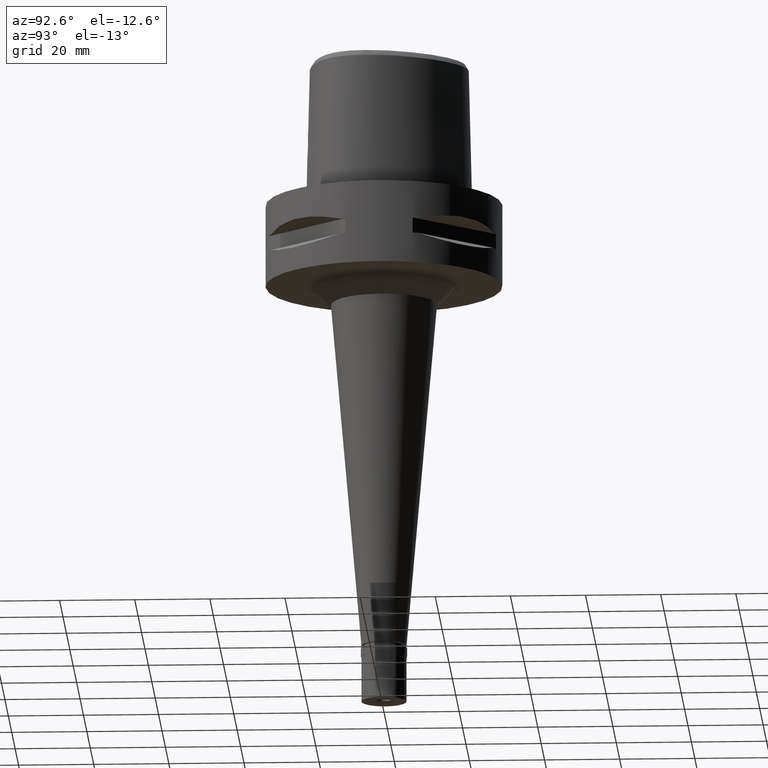
[diagram: clean part render]
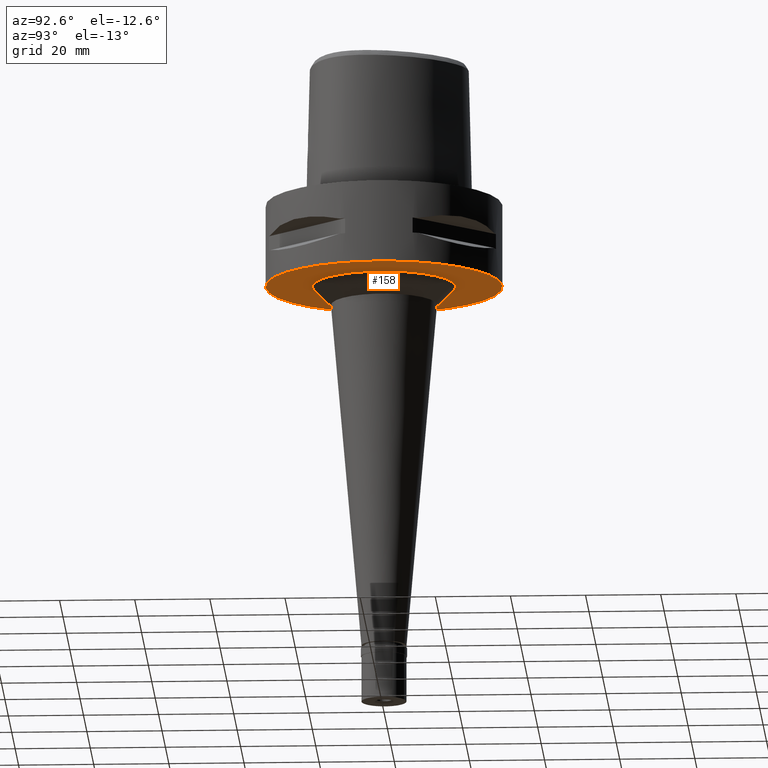
[diagram: same view with one face highlighted and labeled with its STEP entity id]
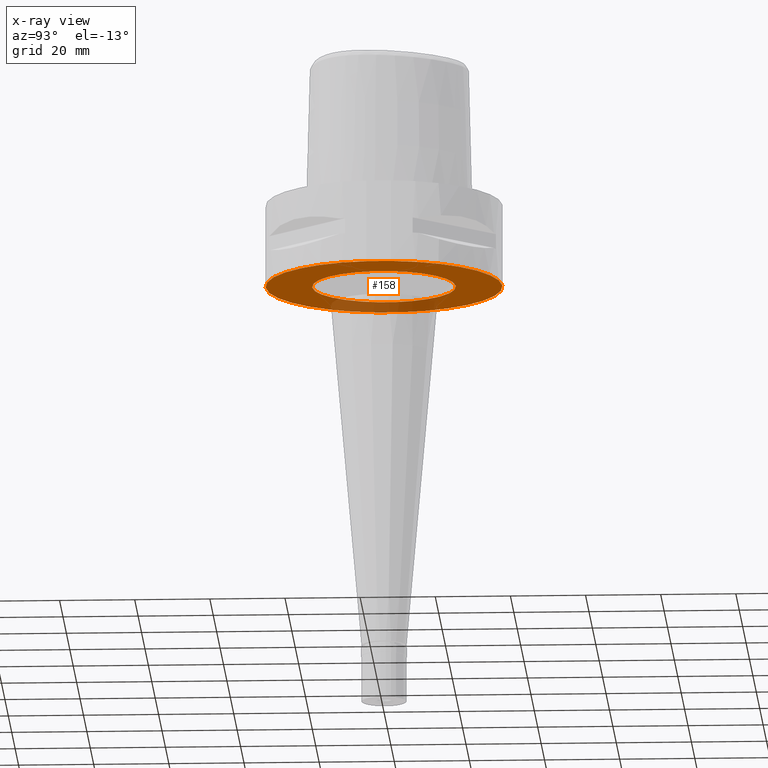
[diagram: x-ray of the same camera — body ghosted, the highlighted face saturated]
A machine part, auxiliary view. The second image highlights one B-rep face of the part: STEP entity #158.
The next image is the same camera in x-ray: the body ghosted, the highlighted face saturated — about 19% of this face is hidden behind the body in this view.
In plain terms, the highlighted planar face has unit normal (0, 0, -1).
Its self-contained STEP definition (entity closure, byte-faithful):
#9 = ORIENTED_EDGE ( 'NONE', *, *, #4148, .F. ) ;
#158 = ADVANCED_FACE ( 'NONE', ( #4701, #2523 ), #4330, .T. ) ;
#193 = DIRECTION ( 'NONE',  ( 0.0000000000000000000, -1.000000000000000000, 0.0000000000000000000 ) ) ;
#243 = DIRECTION ( 'NONE',  ( 0.0000000000000000000, 0.0000000000000000000, -1.000000000000000000 ) ) ;
#316 = DIRECTION ( 'NONE',  ( 0.0000000000000000000, 1.000000000000000000, 0.0000000000000000000 ) ) ;
#335 = DIRECTION ( 'NONE',  ( 0.0000000000000000000, 0.0000000000000000000, -1.000000000000000000 ) ) ;
#356 = EDGE_CURVE ( 'NONE', #3125, #3306, #1456, .T. ) ;
#593 = ORIENTED_EDGE ( 'NONE', *, *, #822, .F. ) ;
#734 = AXIS2_PLACEMENT_3D ( 'NONE', #939, #243, #193 ) ;
#822 = EDGE_CURVE ( 'NONE', #3306, #3125, #1424, .T. ) ;
#857 = CARTESIAN_POINT ( 'NONE',  ( 0.0000000000000000000, 1.304861164492000018E-14, -22.00000000000000000 ) ) ;
#939 = CARTESIAN_POINT ( 'NONE',  ( 0.0000000000000000000, 0.0000000000000000000, -22.00000000000000000 ) ) ;
#1424 = CIRCLE ( 'NONE', #2767, 31.50000000000000000 ) ;
#1456 = CIRCLE ( 'NONE', #2093, 31.50000000000000000 ) ;
#1821 = CIRCLE ( 'NONE', #4112, 19.11894797521000200 ) ;
#1882 = CARTESIAN_POINT ( 'NONE',  ( 0.0000000000000000000, 0.0000000000000000000, -22.00000000000000000 ) ) ;
#1889 = CARTESIAN_POINT ( 'NONE',  ( 0.0000000000000000000, 19.11894797521000200, -22.00000000000000000 ) ) ;
#1925 = CARTESIAN_POINT ( 'NONE',  ( 0.0000000000000000000, 0.0000000000000000000, -22.00000000000000000 ) ) ;
#1927 = VERTEX_POINT ( 'NONE', #1889 ) ;
#2004 = DIRECTION ( 'NONE',  ( 0.0000000000000000000, -1.000000000000000000, 0.0000000000000000000 ) ) ;
#2093 = AXIS2_PLACEMENT_3D ( 'NONE', #2273, #4882, #316 ) ;
#2223 = EDGE_CURVE ( 'NONE', #1927, #3198, #3466, .T. ) ;
#2273 = CARTESIAN_POINT ( 'NONE',  ( 0.0000000000000000000, 1.304861164492000018E-14, -22.00000000000000000 ) ) ;
#2390 = CARTESIAN_POINT ( 'NONE',  ( 0.0000000000000000000, -31.50000000000000000, -22.00000000000000000 ) ) ;
#2523 = FACE_BOUND ( 'NONE', #2830, .T. ) ;
#2628 = DIRECTION ( 'NONE',  ( 0.0000000000000000000, -1.000000000000000000, 0.0000000000000000000 ) ) ;
#2767 = AXIS2_PLACEMENT_3D ( 'NONE', #857, #4565, #2004 ) ;
#2777 = AXIS2_PLACEMENT_3D ( 'NONE', #1925, #335, #3372 ) ;
#2830 = EDGE_LOOP ( 'NONE', ( #3206, #9 ) ) ;
#3125 = VERTEX_POINT ( 'NONE', #3670 ) ;
#3198 = VERTEX_POINT ( 'NONE', #3303 ) ;
#3206 = ORIENTED_EDGE ( 'NONE', *, *, #2223, .F. ) ;
#3230 = EDGE_LOOP ( 'NONE', ( #4344, #593 ) ) ;
#3303 = CARTESIAN_POINT ( 'NONE',  ( 0.0000000000000000000, -19.11894797521000200, -22.00000000000000000 ) ) ;
#3306 = VERTEX_POINT ( 'NONE', #2390 ) ;
#3372 = DIRECTION ( 'NONE',  ( 0.0000000000000000000, 1.000000000000000000, 0.0000000000000000000 ) ) ;
#3466 = CIRCLE ( 'NONE', #2777, 19.11894797521000200 ) ;
#3670 = CARTESIAN_POINT ( 'NONE',  ( 0.0000000000000000000, 31.50000000000000000, -22.00000000000000000 ) ) ;
#4112 = AXIS2_PLACEMENT_3D ( 'NONE', #1882, #4889, #2628 ) ;
#4148 = EDGE_CURVE ( 'NONE', #3198, #1927, #1821, .T. ) ;
#4330 = PLANE ( 'NONE',  #734 ) ;
#4344 = ORIENTED_EDGE ( 'NONE', *, *, #356, .F. ) ;
#4565 = DIRECTION ( 'NONE',  ( 0.0000000000000000000, 0.0000000000000000000, 1.000000000000000000 ) ) ;
#4701 = FACE_OUTER_BOUND ( 'NONE', #3230, .T. ) ;
#4882 = DIRECTION ( 'NONE',  ( 0.0000000000000000000, 0.0000000000000000000, 1.000000000000000000 ) ) ;
#4889 = DIRECTION ( 'NONE',  ( 0.0000000000000000000, 0.0000000000000000000, -1.000000000000000000 ) ) ;